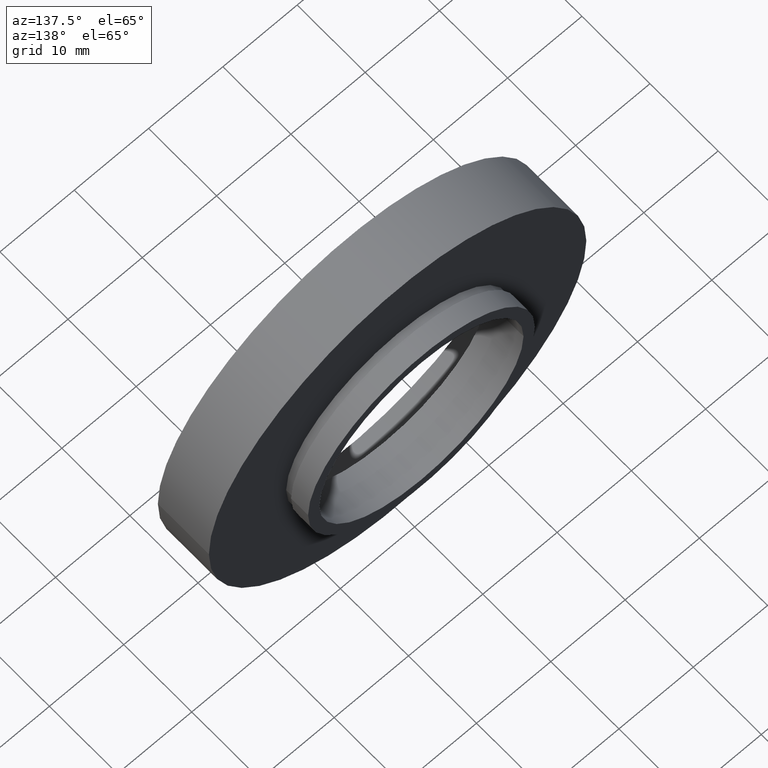
[diagram: clean part render]
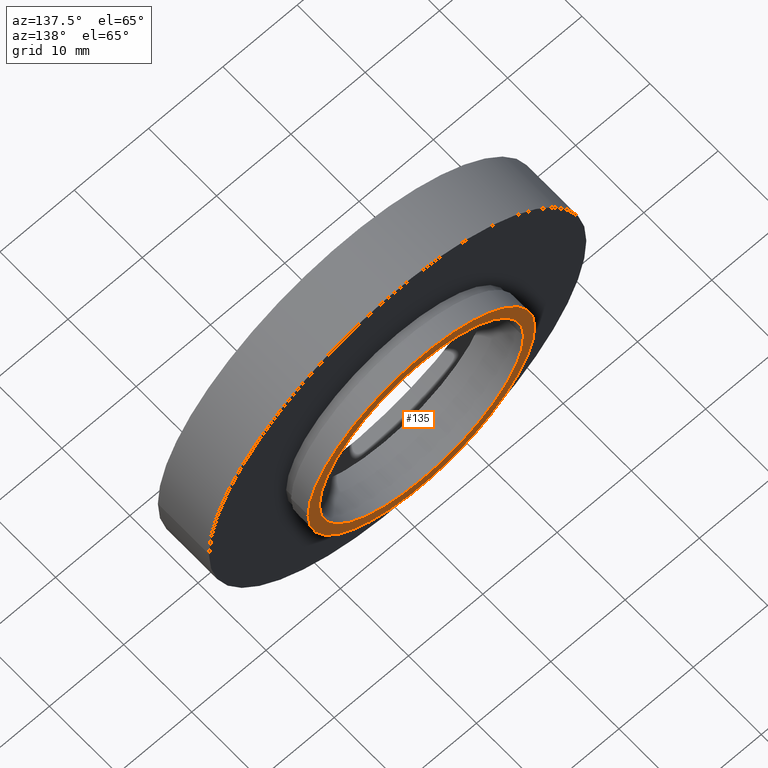
[diagram: same view with one face highlighted and labeled with its STEP entity id]
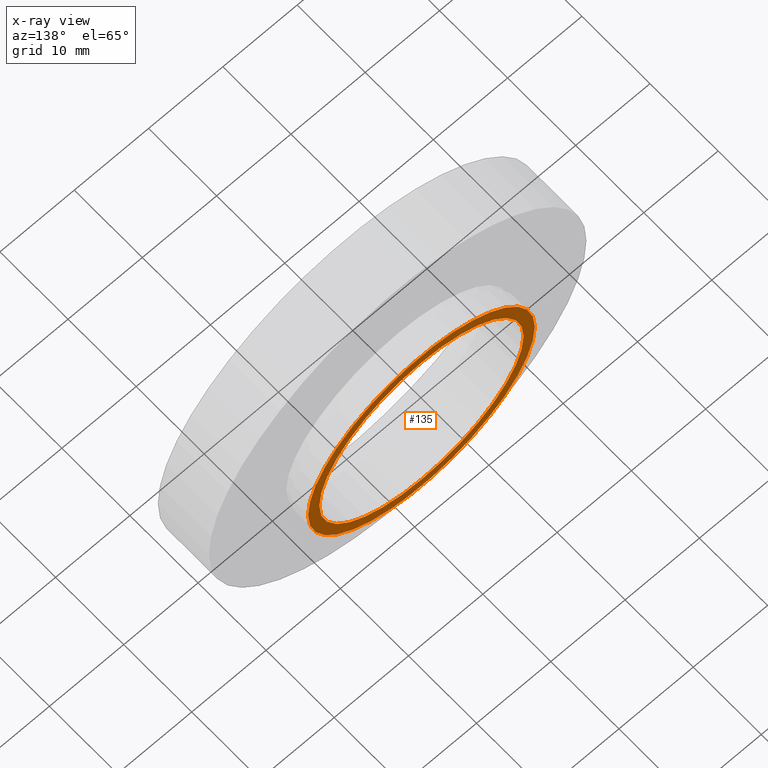
[diagram: x-ray of the same camera — body ghosted, the highlighted face saturated]
A machine part, auxiliary view. The second image highlights one B-rep face of the part: STEP entity #135.
The next image is the same camera in x-ray: the body ghosted, the highlighted face saturated — about 0% of this face is hidden behind the body in this view.
In plain terms, the highlighted planar face has unit normal (0, -1, 0).
Its self-contained STEP definition (entity closure, byte-faithful):
#23 = CARTESIAN_POINT ( 'NONE',  ( 7.208293393765502500E-016, 10.99999999999999600, 0.0000000000000000000 ) ) ;
#29 = DIRECTION ( 'NONE',  ( 1.224646799147351000E-016, -1.000000000000000000, 0.0000000000000000000 ) ) ;
#44 = CARTESIAN_POINT ( 'NONE',  ( -13.74000000000000200, 10.99999999999999500, 0.0000000000000000000 ) ) ;
#71 = FACE_OUTER_BOUND ( 'NONE', #428, .T. ) ;
#82 = DIRECTION ( 'NONE',  ( -1.224646799147351000E-016, 1.000000000000000000, -0.0000000000000000000 ) ) ;
#111 = EDGE_CURVE ( 'NONE', #127, #226, #190, .T. ) ;
#115 = EDGE_CURVE ( 'NONE', #226, #127, #457, .T. ) ;
#123 = CARTESIAN_POINT ( 'NONE',  ( 13.74000000000000200, 10.99999999999999800, 1.682664702028463500E-015 ) ) ;
#126 = CARTESIAN_POINT ( 'NONE',  ( 7.208293393765502500E-016, 10.99999999999999600, 0.0000000000000000000 ) ) ;
#127 = VERTEX_POINT ( 'NONE', #123 ) ;
#129 = CARTESIAN_POINT ( 'NONE',  ( 13.74000000000000200, 10.99999999999999800, 0.0000000000000000000 ) ) ;
#135 = ADVANCED_FACE ( 'NONE', ( #528, #71 ), #558, .F. ) ;
#136 = CIRCLE ( 'NONE', #536, 15.26000000000000000 ) ;
#182 = DIRECTION ( 'NONE',  ( -1.000000000000000000, -1.136778162501184300E-016, 0.0000000000000000000 ) ) ;
#190 = CIRCLE ( 'NONE', #513, 13.74000000000000200 ) ;
#209 = EDGE_LOOP ( 'NONE', ( #381, #320 ) ) ;
#220 = CARTESIAN_POINT ( 'NONE',  ( 15.26000000000000000, 10.99999999999999800, 1.868811015498860900E-015 ) ) ;
#223 = CARTESIAN_POINT ( 'NONE',  ( 7.208293393765502500E-016, 10.99999999999999600, 0.0000000000000000000 ) ) ;
#226 = VERTEX_POINT ( 'NONE', #44 ) ;
#282 = VERTEX_POINT ( 'NONE', #220 ) ;
#292 = CIRCLE ( 'NONE', #509, 15.26000000000000000 ) ;
#305 = AXIS2_PLACEMENT_3D ( 'NONE', #377, #82, #419 ) ;
#311 = DIRECTION ( 'NONE',  ( -1.000000000000000000, -1.136778162501184300E-016, 0.0000000000000000000 ) ) ;
#316 = EDGE_CURVE ( 'NONE', #282, #382, #292, .T. ) ;
#320 = ORIENTED_EDGE ( 'NONE', *, *, #111, .F. ) ;
#346 = AXIS2_PLACEMENT_3D ( 'NONE', #129, #29, #422 ) ;
#373 = CARTESIAN_POINT ( 'NONE',  ( -15.26000000000000000, 10.99999999999999500, 0.0000000000000000000 ) ) ;
#375 = DIRECTION ( 'NONE',  ( -1.224646799147351000E-016, 1.000000000000000000, -0.0000000000000000000 ) ) ;
#377 = CARTESIAN_POINT ( 'NONE',  ( 7.208293393765502500E-016, 10.99999999999999600, 0.0000000000000000000 ) ) ;
#381 = ORIENTED_EDGE ( 'NONE', *, *, #115, .F. ) ;
#382 = VERTEX_POINT ( 'NONE', #373 ) ;
#388 = ORIENTED_EDGE ( 'NONE', *, *, #316, .T. ) ;
#409 = EDGE_CURVE ( 'NONE', #382, #282, #136, .T. ) ;
#419 = DIRECTION ( 'NONE',  ( -1.000000000000000000, -1.262535280914706600E-016, 0.0000000000000000000 ) ) ;
#422 = DIRECTION ( 'NONE',  ( 1.000000000000000000, 1.224646799147351000E-016, 0.0000000000000000000 ) ) ;
#428 = EDGE_LOOP ( 'NONE', ( #610, #388 ) ) ;
#457 = CIRCLE ( 'NONE', #305, 13.74000000000000200 ) ;
#462 = DIRECTION ( 'NONE',  ( -1.224646799147351000E-016, 1.000000000000000000, -0.0000000000000000000 ) ) ;
#509 = AXIS2_PLACEMENT_3D ( 'NONE', #223, #462, #311 ) ;
#513 = AXIS2_PLACEMENT_3D ( 'NONE', #23, #375, #598 ) ;
#528 = FACE_BOUND ( 'NONE', #209, .T. ) ;
#536 = AXIS2_PLACEMENT_3D ( 'NONE', #126, #556, #182 ) ;
#556 = DIRECTION ( 'NONE',  ( -1.224646799147351000E-016, 1.000000000000000000, -0.0000000000000000000 ) ) ;
#558 = PLANE ( 'NONE',  #346 ) ;
#598 = DIRECTION ( 'NONE',  ( -1.000000000000000000, -1.262535280914706600E-016, 0.0000000000000000000 ) ) ;
#610 = ORIENTED_EDGE ( 'NONE', *, *, #409, .T. ) ;